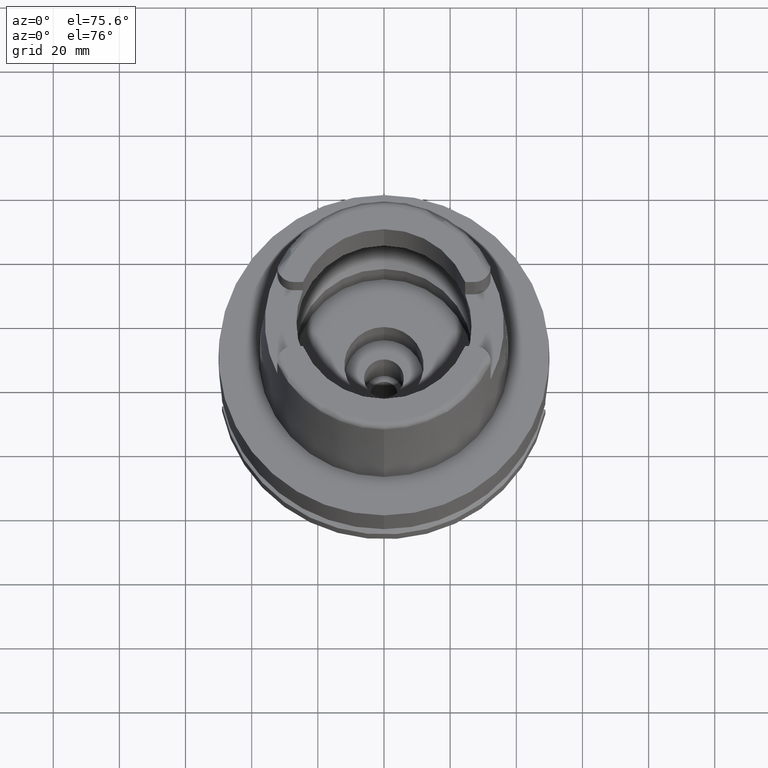
[diagram: clean part render]
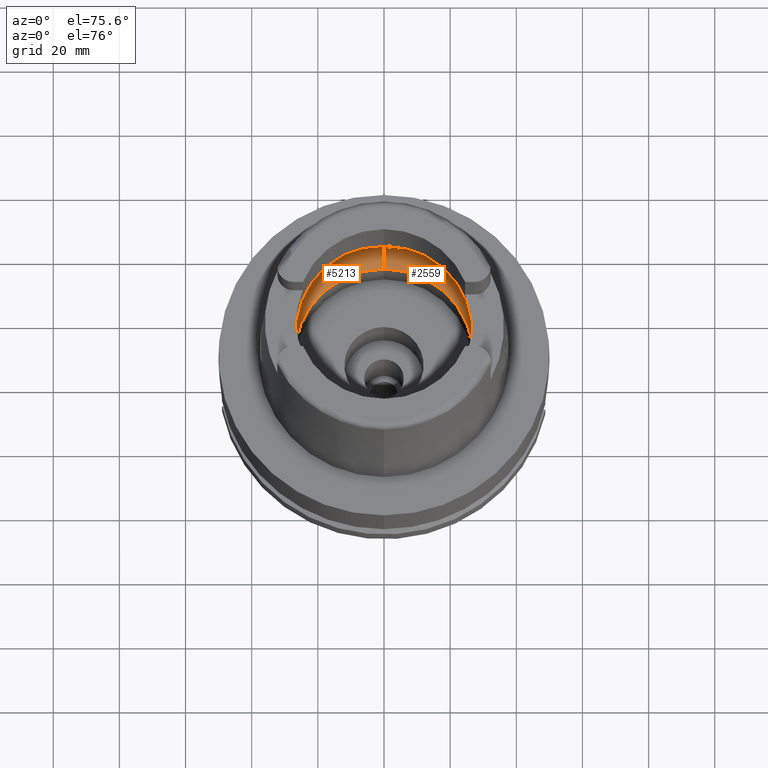
[diagram: same view with one multi-face feature highlighted, each face labeled with its STEP entity id]
A machine part, auxiliary view. The highlighted faces form ONE feature: a constant-radius fillet chain: 2 tangent blend faces with common blend radius 12 mm. The faces share edges in the B-rep.
Their STEP definitions:
[1] entity #2559 (Torus):
#21 = CARTESIAN_POINT ( 'NONE',  ( 31.40918884336000616, 2.390158196043999705, 9.496624327025999790 ) ) ;
#44 = AXIS2_PLACEMENT_3D ( 'NONE', #5484, #1263, #5460 ) ;
#327 = EDGE_CURVE ( 'NONE', #4345, #2922, #4387, .T. ) ;
#483 = VERTEX_POINT ( 'NONE', #3712 ) ;
#639 = ORIENTED_EDGE ( 'NONE', *, *, #2932, .F. ) ;
#670 = CARTESIAN_POINT ( 'NONE',  ( 31.46287568614665986, -1.684656699965325632, 9.190219625007294724 ) ) ;
#729 = AXIS2_PLACEMENT_3D ( 'NONE', #3229, #4968, #995 ) ;
#751 = AXIS2_PLACEMENT_3D ( 'NONE', #969, #2684, #2660 ) ;
#774 = EDGE_CURVE ( 'NONE', #1499, #1763, #4349, .T. ) ;
#894 = ORIENTED_EDGE ( 'NONE', *, *, #327, .F. ) ;
#969 = CARTESIAN_POINT ( 'NONE',  ( 0.0000000000000000000, 0.0000000000000000000, 9.496624327025999790 ) ) ;
#995 = DIRECTION ( 'NONE',  ( 0.0000000000000000000, -0.6166666666667049990, -0.7872243785746061429 ) ) ;
#1012 = ORIENTED_EDGE ( 'NONE', *, *, #1057, .F. ) ;
#1023 = CARTESIAN_POINT ( 'NONE',  ( 31.48971910753999026, -0.8697454017312684638, 8.999999999999998224 ) ) ;
#1057 = EDGE_CURVE ( 'NONE', #2922, #1101, #2054, .T. ) ;
#1101 = VERTEX_POINT ( 'NONE', #1475 ) ;
#1263 = DIRECTION ( 'NONE',  ( 1.000000000000000000, 0.0000000000000000000, 0.0000000000000000000 ) ) ;
#1322 = CARTESIAN_POINT ( 'NONE',  ( 31.48971910753999026, 0.8697454017787721314, 9.000000000000001776 ) ) ;
#1363 = CARTESIAN_POINT ( 'NONE',  ( 0.0000000000000000000, 0.0000000000000000000, 0.04993178413037000635 ) ) ;
#1445 = FACE_OUTER_BOUND ( 'NONE', #4869, .T. ) ;
#1475 = CARTESIAN_POINT ( 'NONE',  ( 31.40918884336000616, -2.390158196043999705, 9.496624327025999790 ) ) ;
#1489 = DIRECTION ( 'NONE',  ( 0.9971171061384295209, -0.07587803796965221503, 0.0000000000000000000 ) ) ;
#1499 = VERTEX_POINT ( 'NONE', #2088 ) ;
#1598 = DIRECTION ( 'NONE',  ( 0.0000000000000000000, 0.0000000000000000000, -1.000000000000000000 ) ) ;
#1638 = CIRCLE ( 'NONE', #5058, 31.49999999999998934 ) ;
#1763 = VERTEX_POINT ( 'NONE', #4954 ) ;
#2054 = B_SPLINE_CURVE_WITH_KNOTS ( 'NONE', 3,
 ( #4011, #1023, #670, #2742 ),
 .UNSPECIFIED., .F., .F.,
 ( 4, 4 ),
 ( 0.0000000000000000000, 1.000000000000000000 ),
 .UNSPECIFIED. ) ;
#2061 = ORIENTED_EDGE ( 'NONE', *, *, #5534, .T. ) ;
#2088 = CARTESIAN_POINT ( 'NONE',  ( 0.0000000000000000000, -26.89999999999999858, 0.04993178413037000635 ) ) ;
#2259 = EDGE_CURVE ( 'NONE', #1101, #3475, #1638, .T. ) ;
#2522 = EDGE_CURVE ( 'NONE', #483, #4345, #5337, .T. ) ;
#2559 = ADVANCED_FACE ( 'NONE', ( #1445 ), #2985, .F. ) ;
#2660 = DIRECTION ( 'NONE',  ( 0.0000000000000000000, 1.000000000000000000, 0.0000000000000000000 ) ) ;
#2684 = DIRECTION ( 'NONE',  ( 0.0000000000000000000, 0.0000000000000000000, -1.000000000000000000 ) ) ;
#2742 = CARTESIAN_POINT ( 'NONE',  ( 31.40918884336000616, -2.390158196043999705, 9.496624327025999790 ) ) ;
#2804 = DIRECTION ( 'NONE',  ( 0.0000000000000000000, 0.0000000000000000000, 1.000000000000000000 ) ) ;
#2922 = VERTEX_POINT ( 'NONE', #4673 ) ;
#2932 = EDGE_CURVE ( 'NONE', #1763, #483, #4884, .T. ) ;
#2985 = TOROIDAL_SURFACE ( 'NONE', #3711, 19.50000000000000000, 12.00000000000000000 ) ;
#3078 = CARTESIAN_POINT ( 'NONE',  ( 31.40918884336000616, 2.390158196043999705, 9.496624327025999790 ) ) ;
#3092 = DIRECTION ( 'NONE',  ( 0.0000000000000000000, -1.000000000000000000, 0.0000000000000000000 ) ) ;
#3107 = AXIS2_PLACEMENT_3D ( 'NONE', #1363, #5172, #3092 ) ;
#3174 = CARTESIAN_POINT ( 'NONE',  ( 0.0000000000000000000, 0.0000000000000000000, 9.496624327025999790 ) ) ;
#3229 = CARTESIAN_POINT ( 'NONE',  ( 0.0000000000000000000, -19.50000000000000000, 9.496624327025999790 ) ) ;
#3242 = CARTESIAN_POINT ( 'NONE',  ( 0.0000000000000000000, 0.0000000000000000000, 9.496624327025999790 ) ) ;
#3442 = CARTESIAN_POINT ( 'NONE',  ( 31.46287568614665986, 1.684656700008886121, 9.190219625026216477 ) ) ;
#3475 = VERTEX_POINT ( 'NONE', #3686 ) ;
#3686 = CARTESIAN_POINT ( 'NONE',  ( 0.0000000000000000000, -31.50000000000000000, 9.496624327025999790 ) ) ;
#3711 = AXIS2_PLACEMENT_3D ( 'NONE', #3174, #2804, #4492 ) ;
#3712 = CARTESIAN_POINT ( 'NONE',  ( 0.0000000000000000000, 31.50000000000000000, 9.496624327025999790 ) ) ;
#4011 = CARTESIAN_POINT ( 'NONE',  ( 31.48971910754000447, 0.0000000000000000000, 9.000000000000000000 ) ) ;
#4304 = CIRCLE ( 'NONE', #729, 11.99999999999999822 ) ;
#4338 = CARTESIAN_POINT ( 'NONE',  ( 31.48971910754000447, 0.0000000000000000000, 9.000000000000000000 ) ) ;
#4345 = VERTEX_POINT ( 'NONE', #3078 ) ;
#4349 = CIRCLE ( 'NONE', #3107, 26.89999999999999858 ) ;
#4387 = B_SPLINE_CURVE_WITH_KNOTS ( 'NONE', 3,
 ( #21, #3442, #1322, #4338 ),
 .UNSPECIFIED., .F., .F.,
 ( 4, 4 ),
 ( 0.0000000000000000000, 1.000000000000000000 ),
 .UNSPECIFIED. ) ;
#4492 = DIRECTION ( 'NONE',  ( 0.0000000000000000000, 1.000000000000000000, 0.0000000000000000000 ) ) ;
#4658 = ORIENTED_EDGE ( 'NONE', *, *, #774, .F. ) ;
#4673 = CARTESIAN_POINT ( 'NONE',  ( 31.48971910754000447, 0.0000000000000000000, 9.000000000000000000 ) ) ;
#4869 = EDGE_LOOP ( 'NONE', ( #894, #5085, #639, #4658, #2061, #5449, #1012 ) ) ;
#4884 = CIRCLE ( 'NONE', #44, 11.99999999999999822 ) ;
#4954 = CARTESIAN_POINT ( 'NONE',  ( 0.0000000000000000000, 26.89999999999999858, 0.04993178413037000635 ) ) ;
#4968 = DIRECTION ( 'NONE',  ( -1.000000000000000000, 0.0000000000000000000, 0.0000000000000000000 ) ) ;
#5058 = AXIS2_PLACEMENT_3D ( 'NONE', #3242, #1598, #1489 ) ;
#5085 = ORIENTED_EDGE ( 'NONE', *, *, #2522, .F. ) ;
#5172 = DIRECTION ( 'NONE',  ( 0.0000000000000000000, 0.0000000000000000000, 1.000000000000000000 ) ) ;
#5337 = CIRCLE ( 'NONE', #751, 31.50000000000000000 ) ;
#5449 = ORIENTED_EDGE ( 'NONE', *, *, #2259, .F. ) ;
#5460 = DIRECTION ( 'NONE',  ( 0.0000000000000000000, 0.6166666666667049990, -0.7872243785746061429 ) ) ;
#5484 = CARTESIAN_POINT ( 'NONE',  ( 0.0000000000000000000, 19.50000000000000000, 9.496624327025999790 ) ) ;
#5534 = EDGE_CURVE ( 'NONE', #1499, #3475, #4304, .T. ) ;
[2] entity #5213 (Torus):
#44 = AXIS2_PLACEMENT_3D ( 'NONE', #5484, #1263, #5460 ) ;
#59 = EDGE_CURVE ( 'NONE', #4898, #483, #2111, .T. ) ;
#135 = CARTESIAN_POINT ( 'NONE',  ( -31.40918884336000616, -2.390158196043999705, 9.496624327025999790 ) ) ;
#366 = TOROIDAL_SURFACE ( 'NONE', #551, 19.50000000000000000, 12.00000000000000000 ) ;
#428 = EDGE_CURVE ( 'NONE', #3475, #4431, #3369, .T. ) ;
#483 = VERTEX_POINT ( 'NONE', #3712 ) ;
#551 = AXIS2_PLACEMENT_3D ( 'NONE', #1092, #4136, #4109 ) ;
#680 = FACE_OUTER_BOUND ( 'NONE', #5181, .T. ) ;
#729 = AXIS2_PLACEMENT_3D ( 'NONE', #3229, #4968, #995 ) ;
#740 = DIRECTION ( 'NONE',  ( 0.0000000000000000000, 0.0000000000000000000, -1.000000000000000000 ) ) ;
#830 = EDGE_CURVE ( 'NONE', #1947, #4898, #5001, .T. ) ;
#923 = ORIENTED_EDGE ( 'NONE', *, *, #4911, .F. ) ;
#995 = DIRECTION ( 'NONE',  ( 0.0000000000000000000, -0.6166666666667049990, -0.7872243785746061429 ) ) ;
#1005 = ORIENTED_EDGE ( 'NONE', *, *, #1938, .F. ) ;
#1020 = AXIS2_PLACEMENT_3D ( 'NONE', #2446, #4132, #5436 ) ;
#1092 = CARTESIAN_POINT ( 'NONE',  ( 0.0000000000000000000, 0.0000000000000000000, 9.496624327025999790 ) ) ;
#1105 = CARTESIAN_POINT ( 'NONE',  ( -31.48971910754000447, 0.0000000000000000000, 9.000000000000000000 ) ) ;
#1227 = CARTESIAN_POINT ( 'NONE',  ( -31.46287568614665986, -1.684656700029165899, 9.190219625035021878 ) ) ;
#1263 = DIRECTION ( 'NONE',  ( 1.000000000000000000, 0.0000000000000000000, 0.0000000000000000000 ) ) ;
#1499 = VERTEX_POINT ( 'NONE', #2088 ) ;
#1595 = ORIENTED_EDGE ( 'NONE', *, *, #428, .F. ) ;
#1678 = CARTESIAN_POINT ( 'NONE',  ( -31.48971910754000447, -0.8697454018008697885, 8.999999999999998224 ) ) ;
#1763 = VERTEX_POINT ( 'NONE', #4954 ) ;
#1766 = CARTESIAN_POINT ( 'NONE',  ( -31.48971910754000447, 0.0000000000000000000, 9.000000000000000000 ) ) ;
#1938 = EDGE_CURVE ( 'NONE', #1763, #1499, #4089, .T. ) ;
#1947 = VERTEX_POINT ( 'NONE', #5298 ) ;
#2004 = CARTESIAN_POINT ( 'NONE',  ( 0.0000000000000000000, 0.0000000000000000000, 9.496624327025999790 ) ) ;
#2088 = CARTESIAN_POINT ( 'NONE',  ( 0.0000000000000000000, -26.89999999999999858, 0.04993178413037000635 ) ) ;
#2111 = CIRCLE ( 'NONE', #1020, 31.50000000000001421 ) ;
#2230 = DIRECTION ( 'NONE',  ( 0.0000000000000000000, 0.0000000000000000000, 1.000000000000000000 ) ) ;
#2373 = DIRECTION ( 'NONE',  ( 0.0000000000000000000, -1.000000000000000000, 0.0000000000000000000 ) ) ;
#2410 = CARTESIAN_POINT ( 'NONE',  ( -31.40918884336000616, 2.390158196043999705, 9.496624327025999790 ) ) ;
#2446 = CARTESIAN_POINT ( 'NONE',  ( 0.0000000000000000000, 0.0000000000000000000, 9.496624327025999790 ) ) ;
#2612 = CARTESIAN_POINT ( 'NONE',  ( 0.0000000000000000000, 0.0000000000000000000, 0.04993178413037000635 ) ) ;
#2626 = ORIENTED_EDGE ( 'NONE', *, *, #5534, .F. ) ;
#2920 = ORIENTED_EDGE ( 'NONE', *, *, #59, .F. ) ;
#2932 = EDGE_CURVE ( 'NONE', #1763, #483, #4884, .T. ) ;
#3229 = CARTESIAN_POINT ( 'NONE',  ( 0.0000000000000000000, -19.50000000000000000, 9.496624327025999790 ) ) ;
#3369 = CIRCLE ( 'NONE', #3724, 31.50000000000000000 ) ;
#3379 = CARTESIAN_POINT ( 'NONE',  ( -31.40918884336000616, -2.390158196043999705, 9.496624327025999790 ) ) ;
#3475 = VERTEX_POINT ( 'NONE', #3686 ) ;
#3481 = CARTESIAN_POINT ( 'NONE',  ( -31.48971910754000447, 0.8697454016785111097, 9.000000000000001776 ) ) ;
#3686 = CARTESIAN_POINT ( 'NONE',  ( 0.0000000000000000000, -31.50000000000000000, 9.496624327025999790 ) ) ;
#3712 = CARTESIAN_POINT ( 'NONE',  ( 0.0000000000000000000, 31.50000000000000000, 9.496624327025999790 ) ) ;
#3724 = AXIS2_PLACEMENT_3D ( 'NONE', #2004, #740, #2373 ) ;
#3794 = ORIENTED_EDGE ( 'NONE', *, *, #830, .F. ) ;
#4089 = CIRCLE ( 'NONE', #5257, 26.89999999999999858 ) ;
#4109 = DIRECTION ( 'NONE',  ( 0.0000000000000000000, 1.000000000000000000, 0.0000000000000000000 ) ) ;
#4132 = DIRECTION ( 'NONE',  ( 0.0000000000000000000, 0.0000000000000000000, -1.000000000000000000 ) ) ;
#4136 = DIRECTION ( 'NONE',  ( 0.0000000000000000000, 0.0000000000000000000, 1.000000000000000000 ) ) ;
#4304 = CIRCLE ( 'NONE', #729, 11.99999999999999822 ) ;
#4328 = DIRECTION ( 'NONE',  ( 0.0000000000000000000, 1.000000000000000000, 0.0000000000000000000 ) ) ;
#4431 = VERTEX_POINT ( 'NONE', #135 ) ;
#4774 = CARTESIAN_POINT ( 'NONE',  ( -31.40918884336000616, 2.390158196043999705, 9.496624327025999790 ) ) ;
#4884 = CIRCLE ( 'NONE', #44, 11.99999999999999822 ) ;
#4898 = VERTEX_POINT ( 'NONE', #2410 ) ;
#4911 = EDGE_CURVE ( 'NONE', #4431, #1947, #5359, .T. ) ;
#4954 = CARTESIAN_POINT ( 'NONE',  ( 0.0000000000000000000, 26.89999999999999858, 0.04993178413037000635 ) ) ;
#4968 = DIRECTION ( 'NONE',  ( -1.000000000000000000, 0.0000000000000000000, 0.0000000000000000000 ) ) ;
#5001 = B_SPLINE_CURVE_WITH_KNOTS ( 'NONE', 3,
 ( #1766, #3481, #5199, #4774 ),
 .UNSPECIFIED., .F., .F.,
 ( 4, 4 ),
 ( 0.0000000000000000000, 1.000000000000000000 ),
 .UNSPECIFIED. ) ;
#5010 = ORIENTED_EDGE ( 'NONE', *, *, #2932, .T. ) ;
#5181 = EDGE_LOOP ( 'NONE', ( #1595, #2626, #1005, #5010, #2920, #3794, #923 ) ) ;
#5199 = CARTESIAN_POINT ( 'NONE',  ( -31.46287568614665986, 1.684656699916923683, 9.190219624986275093 ) ) ;
#5213 = ADVANCED_FACE ( 'NONE', ( #680 ), #366, .F. ) ;
#5257 = AXIS2_PLACEMENT_3D ( 'NONE', #2612, #2230, #4328 ) ;
#5298 = CARTESIAN_POINT ( 'NONE',  ( -31.48971910754000447, 0.0000000000000000000, 9.000000000000000000 ) ) ;
#5359 = B_SPLINE_CURVE_WITH_KNOTS ( 'NONE', 3,
 ( #3379, #1227, #1678, #1105 ),
 .UNSPECIFIED., .F., .F.,
 ( 4, 4 ),
 ( 0.0000000000000000000, 1.000000000000000000 ),
 .UNSPECIFIED. ) ;
#5436 = DIRECTION ( 'NONE',  ( -0.9971171061384286327, 0.07587803796966216541, 0.0000000000000000000 ) ) ;
#5460 = DIRECTION ( 'NONE',  ( 0.0000000000000000000, 0.6166666666667049990, -0.7872243785746061429 ) ) ;
#5484 = CARTESIAN_POINT ( 'NONE',  ( 0.0000000000000000000, 19.50000000000000000, 9.496624327025999790 ) ) ;
#5534 = EDGE_CURVE ( 'NONE', #1499, #3475, #4304, .T. ) ;